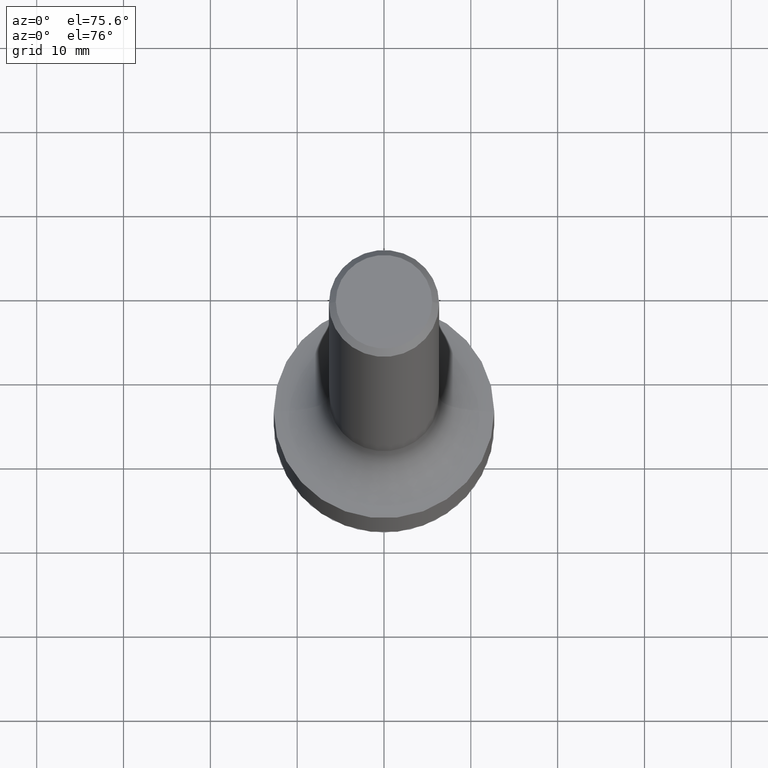
[diagram: clean part render]
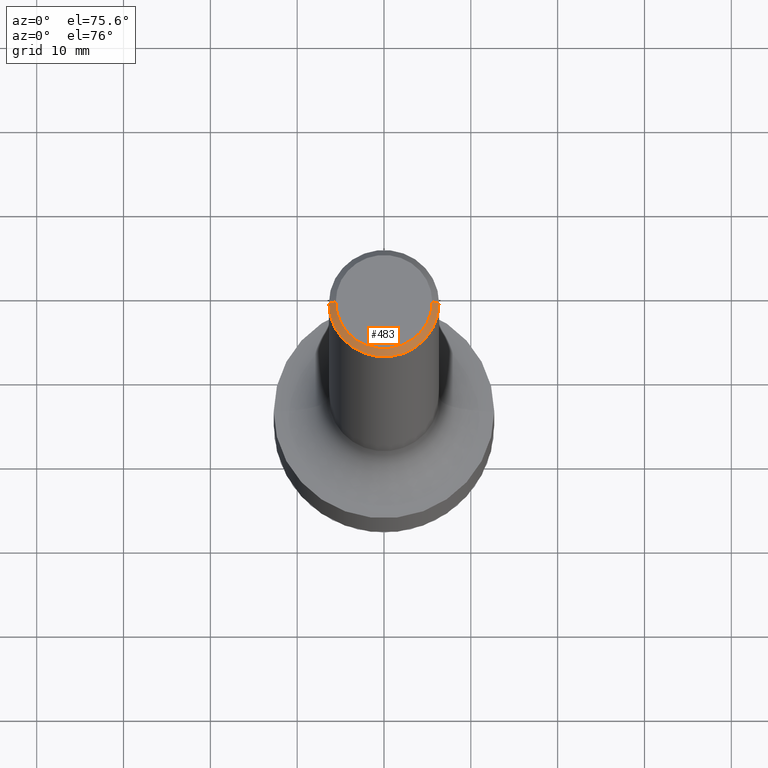
[diagram: same view with one face highlighted and labeled with its STEP entity id]
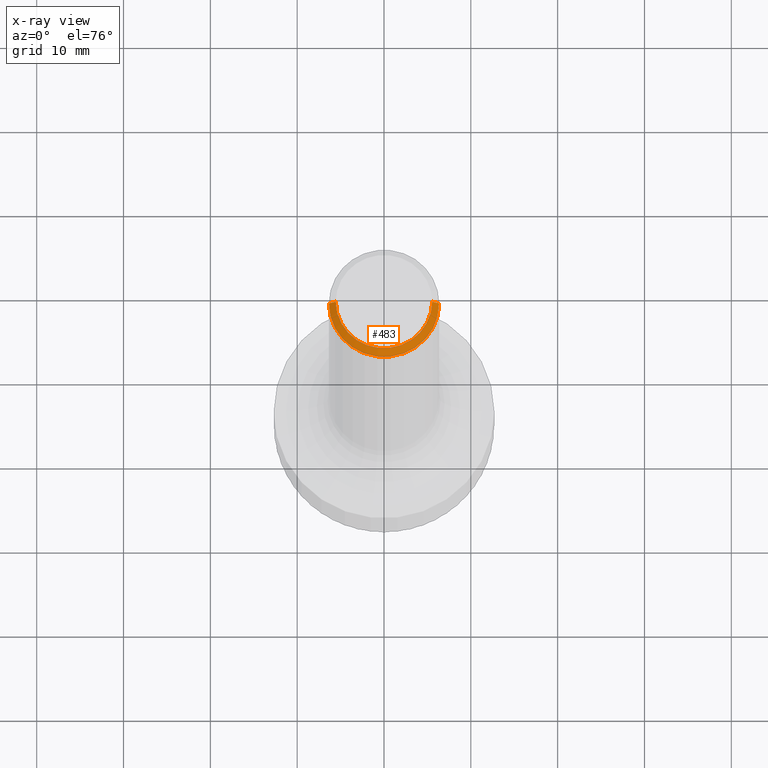
[diagram: x-ray of the same camera — body ghosted, the highlighted face saturated]
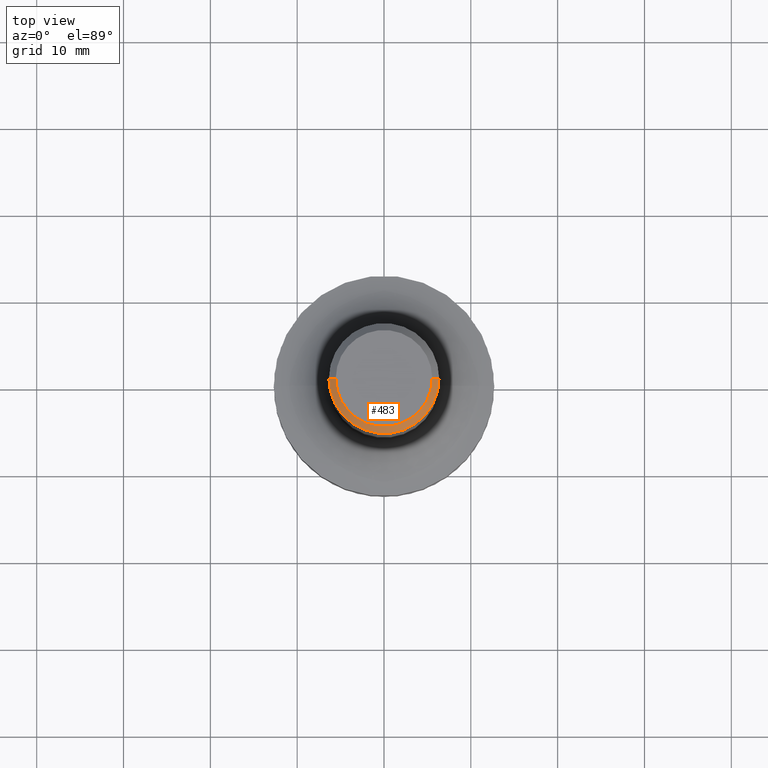
[diagram: same view with one face highlighted and labeled with its STEP entity id]
A machine part, auxiliary view. The second image highlights one B-rep face of the part: STEP entity #483.
The next image is the same camera in x-ray: the body ghosted, the highlighted face saturated — about 0% of this face is hidden behind the body in this view.
A second angle (top view) of the same face is appended — the face is thin or edge-on in the first view.
In plain terms, the highlighted conical surface has half-angle 45 deg.
Its self-contained STEP definition (entity closure, byte-faithful):
#2 = EDGE_CURVE ( 'NONE', #115, #273, #476, .T. ) ;
#23 = CONICAL_SURFACE ( 'NONE', #101, 0.2500000000000000000, 0.7853981633974447263 ) ;
#38 = DIRECTION ( 'NONE',  ( -2.445468806185136597E-29, 3.491481338843145583E-15, 1.000000000000000000 ) ) ;
#40 = AXIS2_PLACEMENT_3D ( 'NONE', #397, #38, #166 ) ;
#67 = AXIS2_PLACEMENT_3D ( 'NONE', #322, #238, #360 ) ;
#84 = CARTESIAN_POINT ( 'NONE',  ( 0.2500000000000000000, -1.824058717214789841E-15, -0.03120000000000021020 ) ) ;
#89 = CARTESIAN_POINT ( 'NONE',  ( 0.2500000000000000000, -1.824058717214789841E-15, -0.03120000000000021020 ) ) ;
#95 = EDGE_CURVE ( 'NONE', #387, #354, #306, .T. ) ;
#96 = ORIENTED_EDGE ( 'NONE', *, *, #2, .T. ) ;
#101 = AXIS2_PLACEMENT_3D ( 'NONE', #452, #219, #366 ) ;
#115 = VERTEX_POINT ( 'NONE', #129 ) ;
#117 = DIRECTION ( 'NONE',  ( -0.7071067811865450192, 2.468850131082230634E-15, -0.7071067811865500152 ) ) ;
#127 = CARTESIAN_POINT ( 'NONE',  ( 0.2187999999999999945, -1.662567839563600480E-15, 7.654042494682104827E-18 ) ) ;
#129 = CARTESIAN_POINT ( 'NONE',  ( -0.2187999999999999945, 1.582339342763707436E-15, 7.654042494660075270E-18 ) ) ;
#163 = DIRECTION ( 'NONE',  ( 0.7071067811865450192, -7.319954787623246579E-15, -0.7071067811865500152 ) ) ;
#166 = DIRECTION ( 'NONE',  ( 1.000000000000000000, -6.982962677686266711E-15, 4.876319244907601817E-29 ) ) ;
#211 = VECTOR ( 'NONE', #117, 39.37007874015748143 ) ;
#213 = CIRCLE ( 'NONE', #40, 0.2187999999999999945 ) ;
#219 = DIRECTION ( 'NONE',  ( 2.445468806185136597E-29, -3.491481338843145583E-15, -1.000000000000000000 ) ) ;
#237 = ORIENTED_EDGE ( 'NONE', *, *, #441, .T. ) ;
#238 = DIRECTION ( 'NONE',  ( -2.445468806185136597E-29, 3.491481338843145583E-15, 1.000000000000000000 ) ) ;
#260 = FACE_OUTER_BOUND ( 'NONE', #356, .T. ) ;
#273 = VERTEX_POINT ( 'NONE', #389 ) ;
#306 = LINE ( 'NONE', #84, #323 ) ;
#322 = CARTESIAN_POINT ( 'NONE',  ( 7.629862675297678326E-31, -1.089342177719068763E-16, -0.03120000000000021020 ) ) ;
#323 = VECTOR ( 'NONE', #163, 39.37007874015748143 ) ;
#354 = VERTEX_POINT ( 'NONE', #89 ) ;
#356 = EDGE_LOOP ( 'NONE', ( #438, #383, #96, #237 ) ) ;
#360 = DIRECTION ( 'NONE',  ( 1.000000000000000000, -6.982962677686266711E-15, 0.000000000000000000 ) ) ;
#366 = DIRECTION ( 'NONE',  ( -1.000000000000000000, 6.982962677686266711E-15, 0.000000000000000000 ) ) ;
#383 = ORIENTED_EDGE ( 'NONE', *, *, #390, .F. ) ;
#387 = VERTEX_POINT ( 'NONE', #127 ) ;
#389 = CARTESIAN_POINT ( 'NONE',  ( -0.2500000000000000000, 1.636806451649659727E-15, -0.03120000000000021020 ) ) ;
#390 = EDGE_CURVE ( 'NONE', #115, #387, #213, .T. ) ;
#397 = CARTESIAN_POINT ( 'NONE',  ( -1.871772216193327269E-46, 2.672394653685605698E-32, 7.654042494670949841E-18 ) ) ;
#414 = CIRCLE ( 'NONE', #67, 0.2500000000000000000 ) ;
#438 = ORIENTED_EDGE ( 'NONE', *, *, #95, .F. ) ;
#441 = EDGE_CURVE ( 'NONE', #273, #354, #414, .T. ) ;
#452 = CARTESIAN_POINT ( 'NONE',  ( 7.629862675297678326E-31, -1.089342177719068763E-16, -0.03120000000000021020 ) ) ;
#476 = LINE ( 'NONE', #510, #211 ) ;
#483 = ADVANCED_FACE ( 'NONE', ( #260 ), #23, .T. ) ;
#510 = CARTESIAN_POINT ( 'NONE',  ( -0.2500000000000000000, 1.636806451649659727E-15, -0.03120000000000021020 ) ) ;